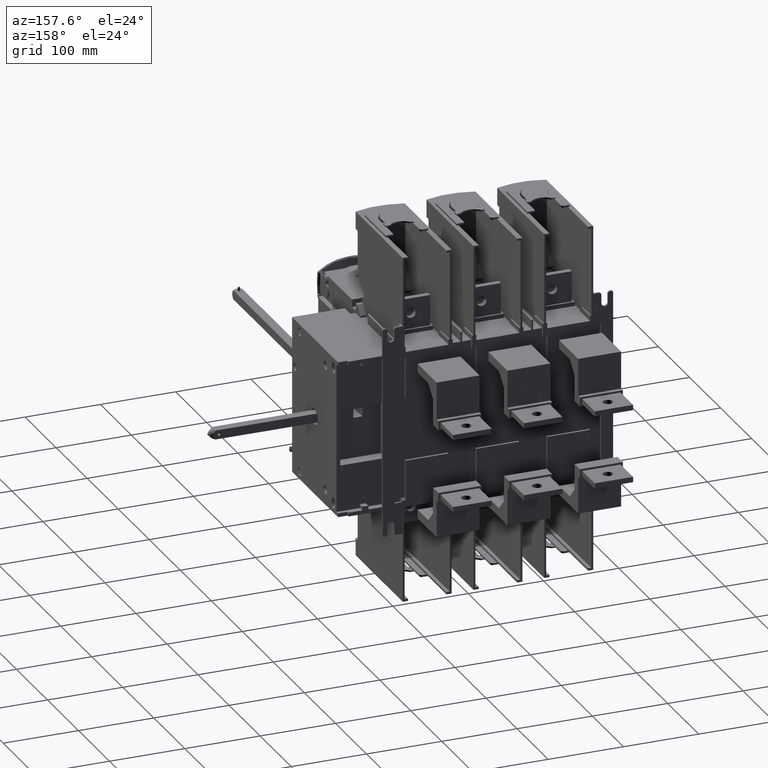
[diagram: clean part render]
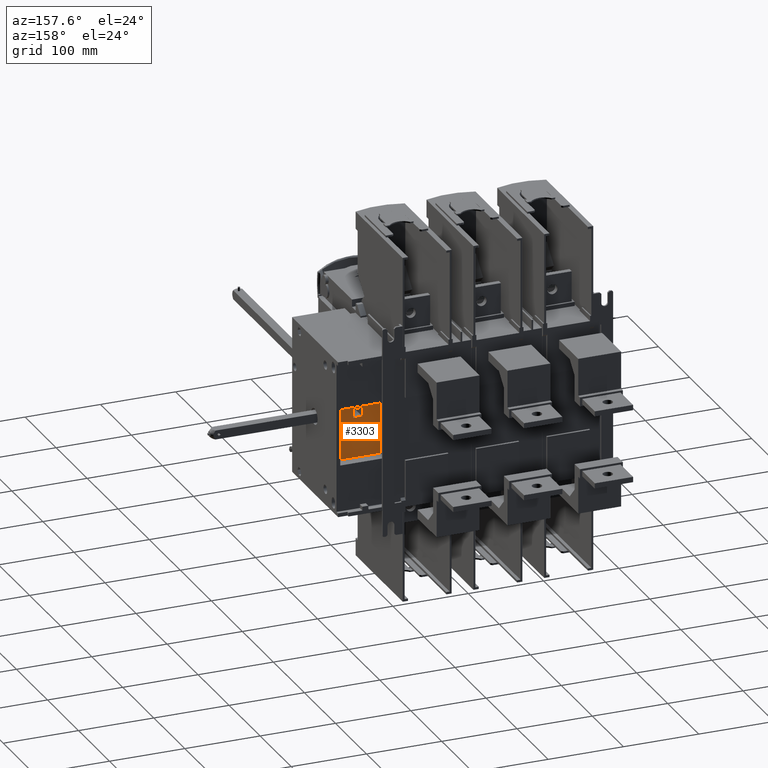
[diagram: same view with one face highlighted and labeled with its STEP entity id]
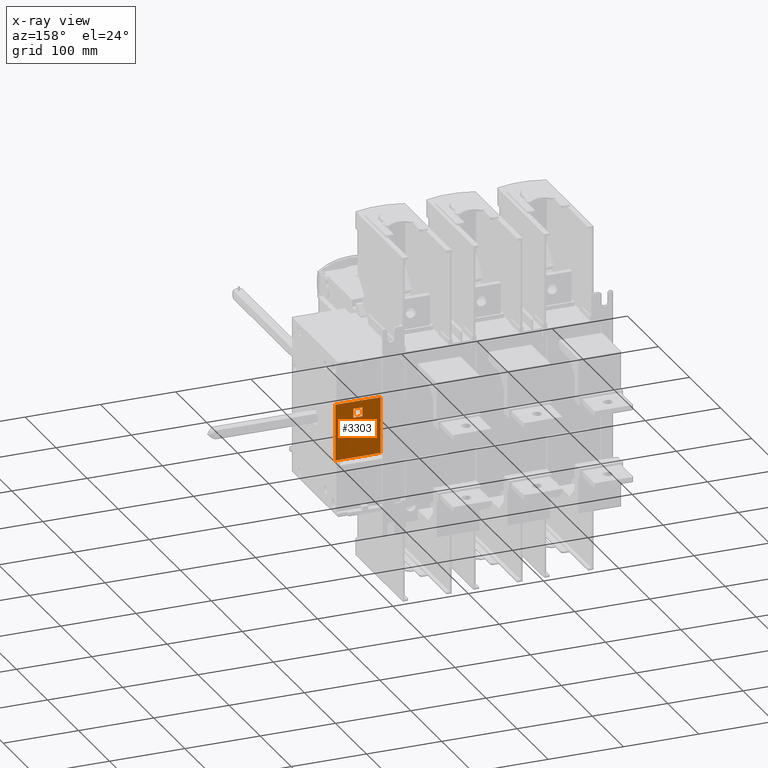
[diagram: x-ray of the same camera — body ghosted, the highlighted face saturated]
A machine part, auxiliary view. The second image highlights one B-rep face of the part: STEP entity #3303.
The next image is the same camera in x-ray: the body ghosted, the highlighted face saturated — about 0% of this face is hidden behind the body in this view.
In plain terms, the highlighted planar face has unit normal (0, -1, 0).
Its self-contained STEP definition (entity closure, byte-faithful):
#1968=FACE_BOUND('',#11736,.T.);
#3303=ADVANCED_FACE('',(#8765,#1968),#6128,.F.);
#6128=PLANE('',#59704);
#8765=FACE_OUTER_BOUND('',#11735,.T.);
#11735=EDGE_LOOP('',(#19857,#19858,#19859,#19860));
#11736=EDGE_LOOP('',(#19861,#19862,#19863,#19864));
#19857=ORIENTED_EDGE('',*,*,#39069,.F.);
#19858=ORIENTED_EDGE('',*,*,#39070,.T.);
#19859=ORIENTED_EDGE('',*,*,#39063,.T.);
#19860=ORIENTED_EDGE('',*,*,#39067,.T.);
#19861=ORIENTED_EDGE('',*,*,#39071,.F.);
#19862=ORIENTED_EDGE('',*,*,#39072,.F.);
#19863=ORIENTED_EDGE('',*,*,#39073,.F.);
#19864=ORIENTED_EDGE('',*,*,#39074,.F.);
#32583=VERTEX_POINT('',#88553);
#32584=VERTEX_POINT('',#88554);
#32585=VERTEX_POINT('',#88559);
#32586=VERTEX_POINT('',#88563);
#32587=VERTEX_POINT('',#88568);
#32588=VERTEX_POINT('',#88569);
#32589=VERTEX_POINT('',#88571);
#32590=VERTEX_POINT('',#88573);
#39063=EDGE_CURVE('',#32583,#32584,#46925,.T.);
#39067=EDGE_CURVE('',#32584,#32585,#46929,.T.);
#39069=EDGE_CURVE('',#32586,#32585,#46931,.T.);
#39070=EDGE_CURVE('',#32586,#32583,#46932,.T.);
#39071=EDGE_CURVE('',#32587,#32588,#46933,.T.);
#39072=EDGE_CURVE('',#32589,#32587,#46934,.T.);
#39073=EDGE_CURVE('',#32590,#32589,#46935,.T.);
#39074=EDGE_CURVE('',#32588,#32590,#46936,.T.);
#46925=LINE('',#88552,#53990);
#46929=LINE('',#88560,#53994);
#46931=LINE('',#88564,#53996);
#46932=LINE('',#88566,#53997);
#46933=LINE('',#88567,#53998);
#46934=LINE('',#88570,#53999);
#46935=LINE('',#88572,#54000);
#46936=LINE('',#88574,#54001);
#53990=VECTOR('',#67244,1.);
#53994=VECTOR('',#67250,1.);
#53996=VECTOR('',#67254,1.);
#53997=VECTOR('',#67257,1.);
#53998=VECTOR('',#67258,1.);
#53999=VECTOR('',#67259,1.);
#54000=VECTOR('',#67260,1.);
#54001=VECTOR('',#67261,1.);
#59704=AXIS2_PLACEMENT_3D('',#88575,#67262,#67263);
#67244=DIRECTION('',(-1.,0.,0.));
#67250=DIRECTION('',(0.,0.,1.));
#67254=DIRECTION('',(-1.,0.,0.));
#67257=DIRECTION('',(0.,0.,-1.));
#67258=DIRECTION('',(0.,0.,-1.));
#67259=DIRECTION('',(1.,0.,0.));
#67260=DIRECTION('',(0.,0.,1.));
#67261=DIRECTION('',(-1.,0.,0.));
#67262=DIRECTION('',(0.,-1.,0.));
#67263=DIRECTION('',(0.,0.,-1.));
#88552=CARTESIAN_POINT('',(-4091.40000000015,-294.999999999931,-29.900000000005));
#88553=CARTESIAN_POINT('',(-4021.39999999992,-294.999999999986,-29.900000000005));
#88554=CARTESIAN_POINT('',(-4081.40000000015,-294.999999999931,-29.900000000005));
#88559=CARTESIAN_POINT('',(-4081.40000000015,-294.999999999931,45.099999999995));
#88560=CARTESIAN_POINT('',(-4081.40000000015,-294.999999999931,7.59999999999499));
#88563=CARTESIAN_POINT('',(-4021.39999999992,-294.999999999986,45.099999999995));
#88564=CARTESIAN_POINT('',(-4091.40000000015,-294.999999999931,45.099999999995));
#88566=CARTESIAN_POINT('',(-4021.39999999992,-294.999999999986,2.79999999999499));
#88567=CARTESIAN_POINT('',(-4045.39999999991,-294.999999999931,29.599999999988));
#88568=CARTESIAN_POINT('',(-4045.39999999991,-294.999999999931,35.599999999988));
#88569=CARTESIAN_POINT('',(-4045.39999999991,-294.999999999931,23.599999999988));
#88570=CARTESIAN_POINT('',(-4051.40000000014,-294.999999999931,35.599999999988));
#88571=CARTESIAN_POINT('',(-4057.39999999991,-294.999999999931,35.599999999988));
#88572=CARTESIAN_POINT('',(-4057.39999999991,-294.999999999931,29.599999999988));
#88573=CARTESIAN_POINT('',(-4057.39999999991,-294.999999999931,23.599999999988));
#88574=CARTESIAN_POINT('',(-4051.40000000014,-294.999999999931,23.599999999988));
#88575=CARTESIAN_POINT('',(-4091.40000000015,-294.999999999931,7.59999999999499));